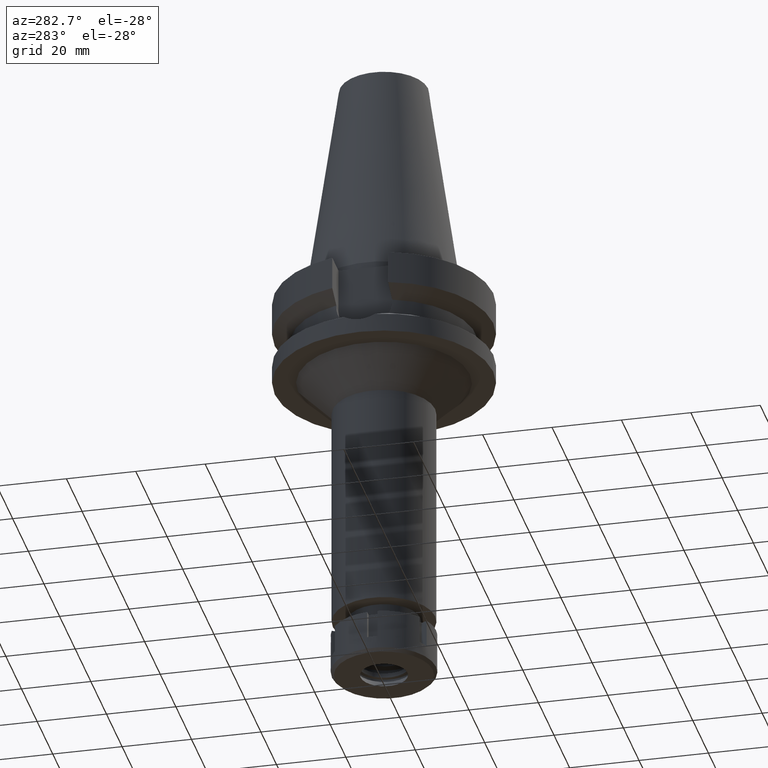
[diagram: clean part render]
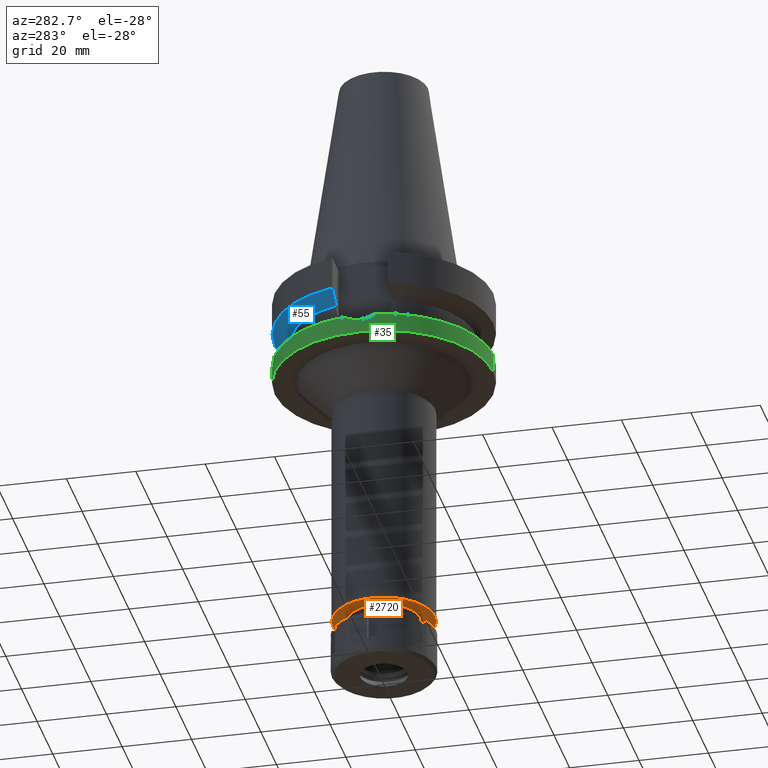
[diagram: same view with three faces highlighted in distinct colors, each labeled with its STEP entity id]
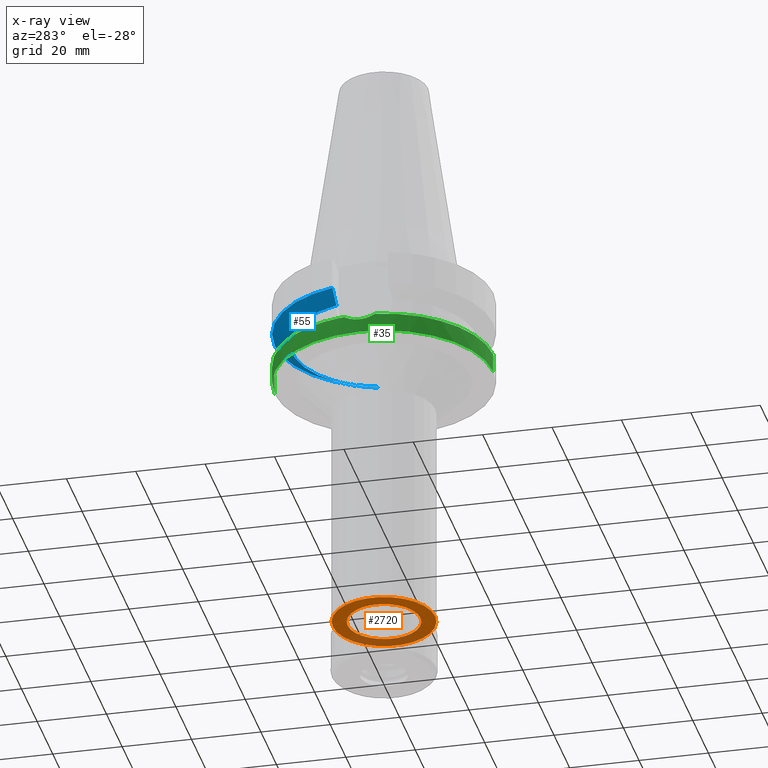
[diagram: x-ray of the same camera — body ghosted, the three highlighted faces saturated]
A machine part, auxiliary view with three faces highlighted in distinct colors.
The next image is the same camera in x-ray (body ghosted, the three faces saturated) — at least one of them is partly hidden behind the body in this view.
Their STEP definitions:

[orange] entity #2720 — the highlighted planar face has unit normal (0, 0, -1).
#71 = ORIENTED_EDGE ( 'NONE', *, *, #2545, .F. ) ;
#225 = VERTEX_POINT ( 'NONE', #1830 ) ;
#236 = CARTESIAN_POINT ( 'NONE',  ( 0.0000000000000000000, 2.134804300274000180E-14, -103.0000000000000000 ) ) ;
#295 = DIRECTION ( 'NONE',  ( 0.0000000000000000000, -1.000000000000000000, 0.0000000000000000000 ) ) ;
#327 = DIRECTION ( 'NONE',  ( 0.0000000000000000000, -1.000000000000000000, 0.0000000000000000000 ) ) ;
#533 = AXIS2_PLACEMENT_3D ( 'NONE', #3450, #3415, #2583 ) ;
#654 = FACE_BOUND ( 'NONE', #1990, .T. ) ;
#830 = CIRCLE ( 'NONE', #3061, 10.50000000000000000 ) ;
#949 = CARTESIAN_POINT ( 'NONE',  ( 0.0000000000000000000, -10.50000000000000000, -103.0000000000000000 ) ) ;
#978 = DIRECTION ( 'NONE',  ( 0.0000000000000000000, 1.000000000000000000, 0.0000000000000000000 ) ) ;
#1113 = EDGE_LOOP ( 'NONE', ( #1746, #71 ) ) ;
#1195 = DIRECTION ( 'NONE',  ( 0.0000000000000000000, 0.0000000000000000000, -1.000000000000000000 ) ) ;
#1234 = EDGE_CURVE ( 'NONE', #1305, #3232, #830, .T. ) ;
#1257 = CIRCLE ( 'NONE', #3296, 14.75000000000000000 ) ;
#1305 = VERTEX_POINT ( 'NONE', #1540 ) ;
#1383 = DIRECTION ( 'NONE',  ( 0.0000000000000000000, 1.000000000000000000, 0.0000000000000000000 ) ) ;
#1425 = CIRCLE ( 'NONE', #3118, 10.50000000000000000 ) ;
#1540 = CARTESIAN_POINT ( 'NONE',  ( 0.0000000000000000000, 10.50000000000000000, -103.0000000000000000 ) ) ;
#1746 = ORIENTED_EDGE ( 'NONE', *, *, #2400, .F. ) ;
#1830 = CARTESIAN_POINT ( 'NONE',  ( 0.0000000000000000000, -14.75000000000000000, -103.0000000000000000 ) ) ;
#1925 = DIRECTION ( 'NONE',  ( 0.0000000000000000000, 0.0000000000000000000, 1.000000000000000000 ) ) ;
#1990 = EDGE_LOOP ( 'NONE', ( #2323, #2847 ) ) ;
#2219 = CARTESIAN_POINT ( 'NONE',  ( 0.0000000000000000000, 2.134804300274000180E-14, -103.0000000000000000 ) ) ;
#2290 = FACE_OUTER_BOUND ( 'NONE', #1113, .T. ) ;
#2317 = CARTESIAN_POINT ( 'NONE',  ( 0.0000000000000000000, 2.134804300274000180E-14, -103.0000000000000000 ) ) ;
#2323 = ORIENTED_EDGE ( 'NONE', *, *, #1234, .F. ) ;
#2400 = EDGE_CURVE ( 'NONE', #2919, #225, #1257, .T. ) ;
#2545 = EDGE_CURVE ( 'NONE', #225, #2919, #3134, .T. ) ;
#2583 = DIRECTION ( 'NONE',  ( 0.0000000000000000000, -1.000000000000000000, 0.0000000000000000000 ) ) ;
#2636 = DIRECTION ( 'NONE',  ( 0.0000000000000000000, 0.0000000000000000000, -1.000000000000000000 ) ) ;
#2720 = ADVANCED_FACE ( 'NONE', ( #2290, #654 ), #2872, .T. ) ;
#2847 = ORIENTED_EDGE ( 'NONE', *, *, #3097, .F. ) ;
#2872 = PLANE ( 'NONE',  #533 ) ;
#2919 = VERTEX_POINT ( 'NONE', #2930 ) ;
#2930 = CARTESIAN_POINT ( 'NONE',  ( 0.0000000000000000000, 14.75000000000000000, -103.0000000000000000 ) ) ;
#2984 = CARTESIAN_POINT ( 'NONE',  ( 0.0000000000000000000, 2.134804300274000180E-14, -103.0000000000000000 ) ) ;
#3061 = AXIS2_PLACEMENT_3D ( 'NONE', #2984, #2636, #978 ) ;
#3097 = EDGE_CURVE ( 'NONE', #3232, #1305, #1425, .T. ) ;
#3118 = AXIS2_PLACEMENT_3D ( 'NONE', #2317, #1195, #327 ) ;
#3134 = CIRCLE ( 'NONE', #3366, 14.75000000000000000 ) ;
#3232 = VERTEX_POINT ( 'NONE', #949 ) ;
#3296 = AXIS2_PLACEMENT_3D ( 'NONE', #2219, #3605, #1383 ) ;
#3366 = AXIS2_PLACEMENT_3D ( 'NONE', #236, #1925, #295 ) ;
#3415 = DIRECTION ( 'NONE',  ( 0.0000000000000000000, 0.0000000000000000000, -1.000000000000000000 ) ) ;
#3450 = CARTESIAN_POINT ( 'NONE',  ( 0.0000000000000000000, 0.0000000000000000000, -103.0000000000000000 ) ) ;
#3605 = DIRECTION ( 'NONE',  ( 0.0000000000000000000, 0.0000000000000000000, 1.000000000000000000 ) ) ;

[blue] entity #55 — the highlighted conical surface has half-angle 60 deg.
#55 = ADVANCED_FACE ( 'NONE', ( #1194 ), #651, .T. ) ;
#117 = DIRECTION ( 'NONE',  ( 0.0000000000000000000, 0.0000000000000000000, 1.000000000000000000 ) ) ;
#138 = CARTESIAN_POINT ( 'NONE',  ( -28.57295870772433233, 8.050008282486713185, -12.61547480681936229 ) ) ;
#174 = CIRCLE ( 'NONE', #2238, 26.50000000000000711 ) ;
#222 = B_SPLINE_CURVE_WITH_KNOTS ( 'NONE', 3,
 ( #2191, #2992, #1606, #2152 ),
 .UNSPECIFIED., .F., .F.,
 ( 4, 4 ),
 ( 0.0000000000000000000, 1.000000000000000000 ),
 .UNSPECIFIED. ) ;
#405 = EDGE_CURVE ( 'NONE', #3332, #2174, #222, .T. ) ;
#595 = CIRCLE ( 'NONE', #2942, 31.50000000000000000 ) ;
#645 = ORIENTED_EDGE ( 'NONE', *, *, #3640, .T. ) ;
#651 = CONICAL_SURFACE ( 'NONE', #2699, 29.00000000000000000, 1.047197551196400456 ) ;
#741 = EDGE_CURVE ( 'NONE', #3050, #2174, #174, .T. ) ;
#1194 = FACE_OUTER_BOUND ( 'NONE', #2332, .T. ) ;
#1398 = CARTESIAN_POINT ( 'NONE',  ( -25.24772216385000334, 8.050001586148001209, -14.45224487904000021 ) ) ;
#1469 = CARTESIAN_POINT ( 'NONE',  ( 0.0000000000000000000, 1.065333950388000029E-14, -13.00888132564000088 ) ) ;
#1606 = CARTESIAN_POINT ( 'NONE',  ( 26.83754616493318679, 8.049990821701827670, -13.57774887833821786 ) ) ;
#1790 = CARTESIAN_POINT ( 'NONE',  ( 25.24772413117000269, 8.049995415925998543, -14.45229202691999859 ) ) ;
#1875 = ORIENTED_EDGE ( 'NONE', *, *, #405, .T. ) ;
#2114 = DIRECTION ( 'NONE',  ( -0.9527442516822307583, 0.3037735849057093818, 0.0000000000000000000 ) ) ;
#2152 = CARTESIAN_POINT ( 'NONE',  ( 25.24772413117000269, 8.049995415925998543, -14.45229202691999859 ) ) ;
#2174 = VERTEX_POINT ( 'NONE', #1790 ) ;
#2191 = CARTESIAN_POINT ( 'NONE',  ( 30.45402291370999848, 8.049999277702999834, -11.56551215824000067 ) ) ;
#2238 = AXIS2_PLACEMENT_3D ( 'NONE', #2693, #2663, #2114 ) ;
#2253 = VERTEX_POINT ( 'NONE', #2940 ) ;
#2332 = EDGE_LOOP ( 'NONE', ( #3214, #1875, #3091, #645 ) ) ;
#2368 = DIRECTION ( 'NONE',  ( 0.0000000000000000000, 1.000000000000000000, 0.0000000000000000000 ) ) ;
#2369 = CARTESIAN_POINT ( 'NONE',  ( -30.45402162745000041, 8.050004143762000908, -11.56546832741999964 ) ) ;
#2465 = DIRECTION ( 'NONE',  ( 0.0000000000000000000, 0.0000000000000000000, 1.000000000000000000 ) ) ;
#2620 = CARTESIAN_POINT ( 'NONE',  ( -26.83758147670505068, 8.050003175721460735, -13.57772735594135760 ) ) ;
#2625 = EDGE_CURVE ( 'NONE', #3332, #2253, #595, .T. ) ;
#2663 = DIRECTION ( 'NONE',  ( 0.0000000000000000000, 0.0000000000000000000, -1.000000000000000000 ) ) ;
#2693 = CARTESIAN_POINT ( 'NONE',  ( 0.0000000000000000000, 1.065333950388000029E-14, -14.45225699861000024 ) ) ;
#2699 = AXIS2_PLACEMENT_3D ( 'NONE', #1469, #117, #2368 ) ;
#2734 = B_SPLINE_CURVE_WITH_KNOTS ( 'NONE', 3,
 ( #1398, #2620, #138, #2369 ),
 .UNSPECIFIED., .F., .F.,
 ( 4, 4 ),
 ( 0.0000000000000000000, 1.000000000000000000 ),
 .UNSPECIFIED. ) ;
#2840 = CARTESIAN_POINT ( 'NONE',  ( 0.0000000000000000000, 1.065333950388000029E-14, -11.56550565266999975 ) ) ;
#2940 = CARTESIAN_POINT ( 'NONE',  ( -30.45402162745000041, 8.050004143762000908, -11.56546832741999964 ) ) ;
#2942 = AXIS2_PLACEMENT_3D ( 'NONE', #2840, #2465, #3598 ) ;
#2992 = CARTESIAN_POINT ( 'NONE',  ( 28.57292329509768436, 8.049998556346059431, -12.61549605279491892 ) ) ;
#3050 = VERTEX_POINT ( 'NONE', #3104 ) ;
#3091 = ORIENTED_EDGE ( 'NONE', *, *, #741, .F. ) ;
#3104 = CARTESIAN_POINT ( 'NONE',  ( -25.24772216385000334, 8.050001586148001209, -14.45224487904000021 ) ) ;
#3214 = ORIENTED_EDGE ( 'NONE', *, *, #2625, .F. ) ;
#3215 = CARTESIAN_POINT ( 'NONE',  ( 30.45402291370999848, 8.049999277702999834, -11.56551215824000067 ) ) ;
#3332 = VERTEX_POINT ( 'NONE', #3215 ) ;
#3598 = DIRECTION ( 'NONE',  ( 0.0000000000000000000, 1.000000000000000000, 0.0000000000000000000 ) ) ;
#3640 = EDGE_CURVE ( 'NONE', #3050, #2253, #2734, .T. ) ;

[green] entity #35 — the highlighted cylindrical surface (partial cylindrical patch) has radius 31.5 mm, axis along (0, 0, -1).
#3 = CARTESIAN_POINT ( 'NONE',  ( -31.41215830074744986, 2.351096289900611147, -22.64905788738967374 ) ) ;
#35 = ADVANCED_FACE ( 'NONE', ( #1801 ), #664, .T. ) ;
#65 = EDGE_CURVE ( 'NONE', #1471, #3634, #1396, .T. ) ;
#116 = VECTOR ( 'NONE', #1779, 1000.000000000000000 ) ;
#141 = CARTESIAN_POINT ( 'NONE',  ( -31.17899877608999759, -4.485536235554000051, -21.63449434733000132 ) ) ;
#242 = EDGE_CURVE ( 'NONE', #2172, #1471, #822, .T. ) ;
#260 = CARTESIAN_POINT ( 'NONE',  ( -31.41955969787373704, -2.249977568491113633, -22.67921356346708706 ) ) ;
#277 = CARTESIAN_POINT ( 'NONE',  ( -31.35500365821784641, 3.021264144777699556, -22.41390211746528394 ) ) ;
#324 = CARTESIAN_POINT ( 'NONE',  ( -31.42474741543221839, -2.177058571075985327, -22.70031563427337318 ) ) ;
#356 = AXIS2_PLACEMENT_3D ( 'NONE', #3181, #2052, #420 ) ;
#358 = AXIS2_PLACEMENT_3D ( 'NONE', #3205, #686, #1293 ) ;
#374 = B_SPLINE_CURVE_WITH_KNOTS ( 'NONE', 3,
 ( #862, #2825, #1170, #2506, #277, #565, #3423, #1418, #1438, #842, #3, #2528, #3084, #1671, #2844, #1991, #3617, #1114, #2492, #324, #260, #2261, #2552, #3100, #1724, #2237 ),
 .UNSPECIFIED., .F., .F.,
 ( 4, 2, 2, 1, 1, 2, 2, 2, 2, 2, 1, 1, 2, 2, 4 ),
 ( 0.0000000000000000000, 0.1250000000000041356, 0.1875000000000060230, 0.2187500000000069944, 0.2343750000000075218, 0.2421875000000075495, 0.2500000000000075495, 0.5000000000000073275, 0.6250000000000072164, 0.6875000000000072164, 0.7187500000000072164, 0.7343750000000073275, 0.7421875000000073275, 0.7500000000000073275, 1.000000000000000000 ),
 .UNSPECIFIED. ) ;
#420 = DIRECTION ( 'NONE',  ( 0.0000000000000000000, -1.000000000000000000, 0.0000000000000000000 ) ) ;
#474 = CIRCLE ( 'NONE', #3414, 31.50000000000000000 ) ;
#501 = ORIENTED_EDGE ( 'NONE', *, *, #857, .F. ) ;
#545 = EDGE_CURVE ( 'NONE', #3634, #2475, #474, .T. ) ;
#548 = CARTESIAN_POINT ( 'NONE',  ( 0.0000000000000000000, 31.50000000000000000, -27.00000000000000000 ) ) ;
#565 = CARTESIAN_POINT ( 'NONE',  ( -31.37907245650125532, 2.757363126055511593, -22.51361630134521263 ) ) ;
#664 = CYLINDRICAL_SURFACE ( 'NONE', #356, 31.50000000000000000 ) ;
#686 = DIRECTION ( 'NONE',  ( 0.0000000000000000000, 0.0000000000000000000, -1.000000000000000000 ) ) ;
#822 = CIRCLE ( 'NONE', #358, 31.50000000000001421 ) ;
#833 = EDGE_CURVE ( 'NONE', #3183, #3307, #2353, .T. ) ;
#842 = CARTESIAN_POINT ( 'NONE',  ( -31.41073716363130330, 2.369955556985003930, -22.64326362460446518 ) ) ;
#857 = EDGE_CURVE ( 'NONE', #3183, #2475, #2503, .T. ) ;
#862 = CARTESIAN_POINT ( 'NONE',  ( -31.17899877608999759, 4.485536235554000051, -21.63449434733000132 ) ) ;
#960 = CARTESIAN_POINT ( 'NONE',  ( 0.0000000000000000000, 31.50000000000000000, -21.63449434733000132 ) ) ;
#1080 = CARTESIAN_POINT ( 'NONE',  ( 0.0000000000000000000, -31.50000000000000000, -27.00000000000000000 ) ) ;
#1114 = CARTESIAN_POINT ( 'NONE',  ( -31.44511396460612929, -1.860301245819776517, -22.78273863314668901 ) ) ;
#1170 = CARTESIAN_POINT ( 'NONE',  ( -31.27846961443810159, 3.743983546128241802, -22.08754853579596755 ) ) ;
#1256 = CARTESIAN_POINT ( 'NONE',  ( 0.0000000000000000000, -31.50000000000000000, -21.63449434733000132 ) ) ;
#1293 = DIRECTION ( 'NONE',  ( -0.9898094849552905306, 0.1423979757318985240, 0.0000000000000000000 ) ) ;
#1396 = LINE ( 'NONE', #960, #116 ) ;
#1418 = CARTESIAN_POINT ( 'NONE',  ( -31.40255557128092434, 2.476306052348729470, -22.60989025223851812 ) ) ;
#1438 = CARTESIAN_POINT ( 'NONE',  ( -31.40749760860639483, 2.412424580012689557, -22.63005222544071415 ) ) ;
#1471 = VERTEX_POINT ( 'NONE', #2727 ) ;
#1645 = EDGE_LOOP ( 'NONE', ( #2072, #2035, #2604, #501, #3428, #2910 ) ) ;
#1671 = CARTESIAN_POINT ( 'NONE',  ( -31.49983371806498766, -0.3969849275483399165, -22.99934650678997272 ) ) ;
#1724 = CARTESIAN_POINT ( 'NONE',  ( -31.28458591552391610, -3.751599172492392942, -22.12699252594189403 ) ) ;
#1779 = DIRECTION ( 'NONE',  ( 0.0000000000000000000, 1.099151708819000049E-13, -1.000000000000000000 ) ) ;
#1801 = FACE_OUTER_BOUND ( 'NONE', #1645, .T. ) ;
#1991 = CARTESIAN_POINT ( 'NONE',  ( -31.47056816806593460, -1.371798205046595109, -22.88470967409861956 ) ) ;
#2035 = ORIENTED_EDGE ( 'NONE', *, *, #65, .T. ) ;
#2052 = DIRECTION ( 'NONE',  ( 0.0000000000000000000, 0.0000000000000000000, -1.000000000000000000 ) ) ;
#2072 = ORIENTED_EDGE ( 'NONE', *, *, #242, .T. ) ;
#2099 = DIRECTION ( 'NONE',  ( 0.0000000000000000000, 0.0000000000000000000, -1.000000000000000000 ) ) ;
#2146 = CARTESIAN_POINT ( 'NONE',  ( 0.0000000000000000000, 0.0000000000000000000, -21.63449434733000132 ) ) ;
#2172 = VERTEX_POINT ( 'NONE', #2406 ) ;
#2237 = CARTESIAN_POINT ( 'NONE',  ( -31.17899877608999759, -4.485536235554000051, -21.63449434733000132 ) ) ;
#2261 = CARTESIAN_POINT ( 'NONE',  ( -31.41604485789485679, -2.298564670172115409, -22.66490387661656669 ) ) ;
#2353 = CIRCLE ( 'NONE', #2826, 31.50000000000000000 ) ;
#2406 = CARTESIAN_POINT ( 'NONE',  ( -31.17899877608999759, 4.485536235554000051, -21.63449434733000132 ) ) ;
#2470 = VECTOR ( 'NONE', #3361, 1000.000000000000000 ) ;
#2475 = VERTEX_POINT ( 'NONE', #1080 ) ;
#2492 = CARTESIAN_POINT ( 'NONE',  ( -31.43626029286638612, -2.006672135014619052, -22.74702249194469772 ) ) ;
#2503 = LINE ( 'NONE', #2788, #2470 ) ;
#2506 = CARTESIAN_POINT ( 'NONE',  ( -31.33719342388261708, 3.200318897615908931, -22.33920407941160136 ) ) ;
#2528 = CARTESIAN_POINT ( 'NONE',  ( -31.47164681449472212, 1.548077469548610585, -22.89150997833689871 ) ) ;
#2552 = CARTESIAN_POINT ( 'NONE',  ( -31.41408065394644211, -2.325228041220462671, -22.65689912745738610 ) ) ;
#2604 = ORIENTED_EDGE ( 'NONE', *, *, #545, .T. ) ;
#2702 = CARTESIAN_POINT ( 'NONE',  ( 0.0000000000000000000, 2.134804300274000180E-14, -27.00000000000000000 ) ) ;
#2727 = CARTESIAN_POINT ( 'NONE',  ( 0.0000000000000000000, 31.50000000000000000, -21.63449434733000132 ) ) ;
#2788 = CARTESIAN_POINT ( 'NONE',  ( 0.0000000000000000000, -31.50000000000000000, -21.63449434733000132 ) ) ;
#2825 = CARTESIAN_POINT ( 'NONE',  ( -31.23226293288995592, 4.115296649377357063, -21.88293843200753841 ) ) ;
#2826 = AXIS2_PLACEMENT_3D ( 'NONE', #2146, #2099, #3213 ) ;
#2844 = CARTESIAN_POINT ( 'NONE',  ( -31.49245606944948861, -0.7860991982277284462, -22.97124303091229791 ) ) ;
#2910 = ORIENTED_EDGE ( 'NONE', *, *, #3555, .F. ) ;
#2977 = DIRECTION ( 'NONE',  ( 0.0000000000000000000, 0.0000000000000000000, 1.000000000000000000 ) ) ;
#3084 = CARTESIAN_POINT ( 'NONE',  ( -31.50032380699094858, 0.7535289836192216040, -23.00127312585626171 ) ) ;
#3100 = CARTESIAN_POINT ( 'NONE',  ( -31.36242476481820773, -3.016548684986644524, -22.44626900665252123 ) ) ;
#3181 = CARTESIAN_POINT ( 'NONE',  ( 0.0000000000000000000, 2.134804300274000180E-14, 74.31999999999999318 ) ) ;
#3183 = VERTEX_POINT ( 'NONE', #1256 ) ;
#3205 = CARTESIAN_POINT ( 'NONE',  ( 0.0000000000000000000, 0.0000000000000000000, -21.63449434733000132 ) ) ;
#3213 = DIRECTION ( 'NONE',  ( 0.0000000000000000000, -1.000000000000000000, 0.0000000000000000000 ) ) ;
#3307 = VERTEX_POINT ( 'NONE', #141 ) ;
#3361 = DIRECTION ( 'NONE',  ( 0.0000000000000000000, -1.105773104655000034E-13, -1.000000000000000000 ) ) ;
#3414 = AXIS2_PLACEMENT_3D ( 'NONE', #2702, #2977, #3568 ) ;
#3423 = CARTESIAN_POINT ( 'NONE',  ( -31.39044521733810100, 2.626578571191307443, -22.56039104643912907 ) ) ;
#3428 = ORIENTED_EDGE ( 'NONE', *, *, #833, .T. ) ;
#3555 = EDGE_CURVE ( 'NONE', #2172, #3307, #374, .T. ) ;
#3568 = DIRECTION ( 'NONE',  ( 0.0000000000000000000, 1.000000000000000000, 0.0000000000000000000 ) ) ;
#3617 = CARTESIAN_POINT ( 'NONE',  ( -31.46146862952803502, -1.567358629215496180, -22.84847756273150310 ) ) ;
#3634 = VERTEX_POINT ( 'NONE', #548 ) ;